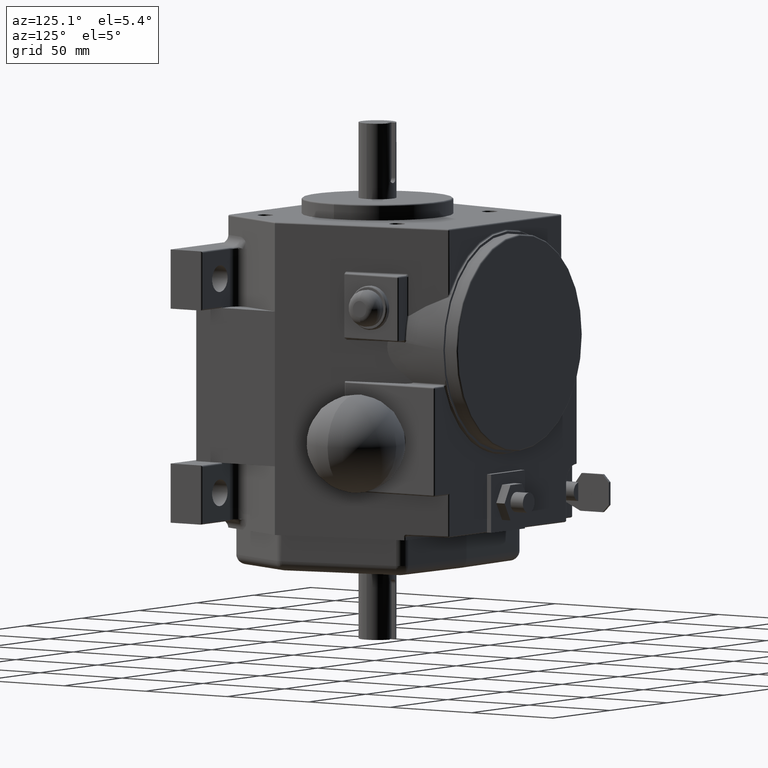
[diagram: clean part render]
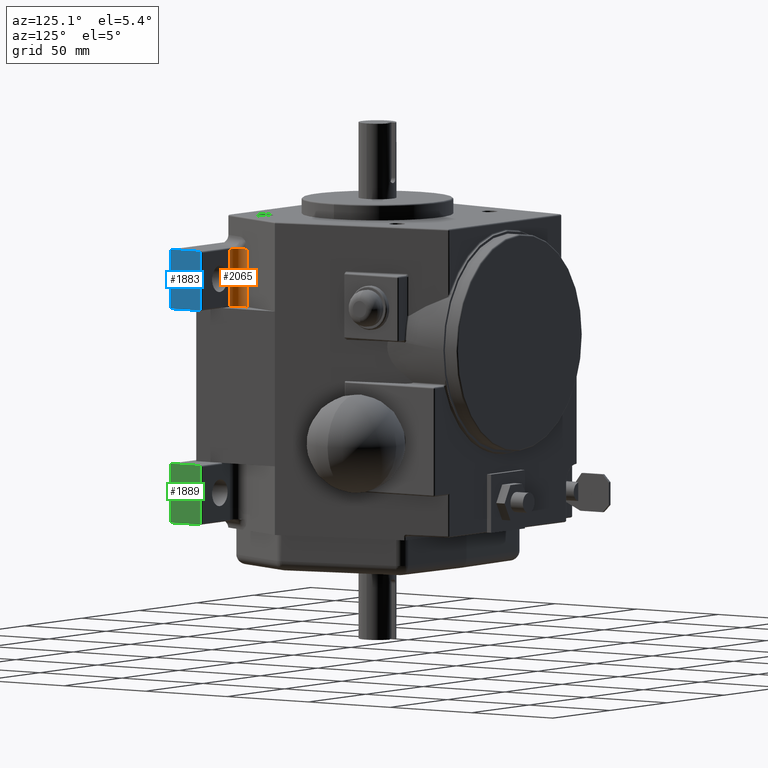
[diagram: same view with three faces highlighted in distinct colors, each labeled with its STEP entity id]
A machine part, auxiliary view with three faces highlighted in distinct colors.
Their STEP definitions:

[orange] entity #2065 — the highlighted cylindrical surface (edge-blend (fillet) strip) has radius 5.08 mm, axis along (0, 0, 1).
#230 = VERTEX_POINT ( 'NONE', #1125 ) ;
#232 = VERTEX_POINT ( 'NONE', #1127 ) ;
#256 = VERTEX_POINT ( 'NONE', #1150 ) ;
#585 = EDGE_CURVE ( 'NONE', #230, #232, #4100, .T. ) ;
#654 = EDGE_CURVE ( 'NONE', #256, #230, #4235, .T. ) ;
#674 = EDGE_CURVE ( 'NONE', #798, #256, #4257, .T. ) ;
#798 = VERTEX_POINT ( 'NONE', #6262 ) ;
#1125 = CARTESIAN_POINT ( 'NONE',  ( 2.406055381338082700, 0.7500000000000001100, 1.537500000000000500 ) ) ;
#1127 = CARTESIAN_POINT ( 'NONE',  ( 2.406055381338082700, 0.7500000000000001100, 2.682500000000000100 ) ) ;
#1150 = CARTESIAN_POINT ( 'NONE',  ( 2.223982085845562100, 1.032760588860236900, 1.537500000000000100 ) ) ;
#1509 = EDGE_LOOP ( 'NONE', ( #3210, #3211, #3212, #3213 ) ) ;
#2065 = ADVANCED_FACE ( 'NONE', ( #5936 ), #5938, .F. ) ;
#2675 = EDGE_CURVE ( 'NONE', #232, #798, #10910, .T. ) ;
#3210 = ORIENTED_EDGE ( 'NONE', *, *, #654, .F. ) ;
#3211 = ORIENTED_EDGE ( 'NONE', *, *, #674, .F. ) ;
#3212 = ORIENTED_EDGE ( 'NONE', *, *, #2675, .F. ) ;
#3213 = ORIENTED_EDGE ( 'NONE', *, *, #585, .F. ) ;
#4100 = LINE ( 'NONE', #5057, #4104 ) ;
#4104 = VECTOR ( 'NONE', #5072, 39.37007874015748100 ) ;
#4235 = CIRCLE ( 'NONE', #4416, 0.2000000000000000400 ) ;
#4257 = LINE ( 'NONE', #5319, #4265 ) ;
#4265 = VECTOR ( 'NONE', #5324, 39.37007874015748100 ) ;
#4416 = AXIS2_PLACEMENT_3D ( 'NONE', #5268, #5275, #5276 ) ;
#5057 = CARTESIAN_POINT ( 'NONE',  ( 2.406055381338082700, 0.7500000000000001100, 2.682500000000000600 ) ) ;
#5072 = DIRECTION ( 'NONE',  ( -0.0000000000000000000, -0.0000000000000000000, 1.000000000000000000 ) ) ;
#5268 = CARTESIAN_POINT ( 'NONE',  ( 2.406055381338082700, 0.9500000000000000700, 1.537499999999999600 ) ) ;
#5275 = DIRECTION ( 'NONE',  ( -3.163192413716518400E-016, -0.0000000000000000000, 1.000000000000000000 ) ) ;
#5276 = DIRECTION ( 'NONE',  ( -1.000000000000000000, 0.0000000000000000000, 0.0000000000000000000 ) ) ;
#5319 = CARTESIAN_POINT ( 'NONE',  ( 2.223982085845561700, 1.032760588860236900, 1.537499999999999600 ) ) ;
#5324 = DIRECTION ( 'NONE',  ( 0.0000000000000000000, 0.0000000000000000000, -1.000000000000000000 ) ) ;
#5936 = FACE_OUTER_BOUND ( 'NONE', #1509, .T. ) ;
#5938 = CYLINDRICAL_SURFACE ( 'NONE', #7633, 0.1999999999999997900 ) ;
#6262 = CARTESIAN_POINT ( 'NONE',  ( 2.223982085845561700, 1.032760588860236900, 2.682500000000000100 ) ) ;
#7633 = AXIS2_PLACEMENT_3D ( 'NONE', #9005, #9000, #9003 ) ;
#7743 = AXIS2_PLACEMENT_3D ( 'NONE', #11123, #11128, #11129 ) ;
#9000 = DIRECTION ( 'NONE',  ( 0.0000000000000000000, 0.0000000000000000000, 1.000000000000000000 ) ) ;
#9003 = DIRECTION ( 'NONE',  ( 1.000000000000000000, 0.0000000000000000000, 0.0000000000000000000 ) ) ;
#9005 = CARTESIAN_POINT ( 'NONE',  ( 2.406055381338082700, 0.9500000000000000700, -12.11588692513332100 ) ) ;
#10910 = CIRCLE ( 'NONE', #7743, 0.2000000000000000400 ) ;
#11123 = CARTESIAN_POINT ( 'NONE',  ( 2.406055381338082700, 0.9500000000000000700, 2.682500000000000100 ) ) ;
#11128 = DIRECTION ( 'NONE',  ( -0.0000000000000000000, -0.0000000000000000000, -1.000000000000000000 ) ) ;
#11129 = DIRECTION ( 'NONE',  ( -1.000000000000000000, 0.0000000000000000000, 0.0000000000000000000 ) ) ;

[blue] entity #1883 — the highlighted planar face has unit normal (-1, 0, 0).
#247 = VERTEX_POINT ( 'NONE', #1142 ) ;
#248 = VERTEX_POINT ( 'NONE', #1143 ) ;
#273 = VERTEX_POINT ( 'NONE', #1164 ) ;
#274 = VERTEX_POINT ( 'NONE', #1165 ) ;
#592 = EDGE_CURVE ( 'NONE', #248, #247, #4108, .T. ) ;
#627 = EDGE_CURVE ( 'NONE', #274, #273, #4185, .T. ) ;
#641 = EDGE_CURVE ( 'NONE', #247, #273, #4210, .T. ) ;
#642 = EDGE_CURVE ( 'NONE', #274, #248, #4212, .T. ) ;
#1142 = CARTESIAN_POINT ( 'NONE',  ( 3.375000000000000400, 0.0000000000000000000, 2.712499999999999900 ) ) ;
#1143 = CARTESIAN_POINT ( 'NONE',  ( 3.375000000000000400, 0.7199999999999999700, 2.712499999999999900 ) ) ;
#1164 = CARTESIAN_POINT ( 'NONE',  ( 3.375000000000000400, 0.0000000000000000000, 1.537500000000000100 ) ) ;
#1165 = CARTESIAN_POINT ( 'NONE',  ( 3.375000000000000400, 0.7199999999999999700, 1.537500000000000100 ) ) ;
#1273 = EDGE_LOOP ( 'NONE', ( #1820, #1821, #1822, #1823 ) ) ;
#1820 = ORIENTED_EDGE ( 'NONE', *, *, #627, .F. ) ;
#1821 = ORIENTED_EDGE ( 'NONE', *, *, #642, .T. ) ;
#1822 = ORIENTED_EDGE ( 'NONE', *, *, #592, .T. ) ;
#1823 = ORIENTED_EDGE ( 'NONE', *, *, #641, .T. ) ;
#1883 = ADVANCED_FACE ( 'NONE', ( #5644 ), #6493, .F. ) ;
#4108 = LINE ( 'NONE', #5068, #4116 ) ;
#4116 = VECTOR ( 'NONE', #5086, 39.37007874015748100 ) ;
#4185 = LINE ( 'NONE', #5215, #4186 ) ;
#4186 = VECTOR ( 'NONE', #5216, 39.37007874015748100 ) ;
#4210 = LINE ( 'NONE', #5244, #4211 ) ;
#4211 = VECTOR ( 'NONE', #5245, 39.37007874015748100 ) ;
#4212 = LINE ( 'NONE', #5246, #4213 ) ;
#4213 = VECTOR ( 'NONE', #5247, 39.37007874015748100 ) ;
#4453 = AXIS2_PLACEMENT_3D ( 'NONE', #6485, #6498, #6499 ) ;
#5068 = CARTESIAN_POINT ( 'NONE',  ( 3.375000000000000400, 0.7500000000000001100, 2.712499999999999900 ) ) ;
#5086 = DIRECTION ( 'NONE',  ( -0.0000000000000000000, -1.000000000000000000, -0.0000000000000000000 ) ) ;
#5215 = CARTESIAN_POINT ( 'NONE',  ( 3.375000000000000400, 0.7500000000000001100, 1.537500000000000100 ) ) ;
#5216 = DIRECTION ( 'NONE',  ( -0.0000000000000000000, -1.000000000000000000, -0.0000000000000000000 ) ) ;
#5244 = CARTESIAN_POINT ( 'NONE',  ( 3.375000000000000400, 0.0000000000000000000, 1.537500000000000100 ) ) ;
#5245 = DIRECTION ( 'NONE',  ( -0.0000000000000000000, -0.0000000000000000000, -1.000000000000000000 ) ) ;
#5246 = CARTESIAN_POINT ( 'NONE',  ( 3.375000000000000400, 0.7200000000000000800, 1.537500000000000100 ) ) ;
#5247 = DIRECTION ( 'NONE',  ( -0.0000000000000000000, -0.0000000000000000000, 1.000000000000000000 ) ) ;
#5644 = FACE_OUTER_BOUND ( 'NONE', #1273, .T. ) ;
#6485 = CARTESIAN_POINT ( 'NONE',  ( 3.375000000000000400, 0.7500000000000001100, 1.537500000000000100 ) ) ;
#6493 = PLANE ( 'NONE',  #4453 ) ;
#6498 = DIRECTION ( 'NONE',  ( -1.000000000000000000, 0.0000000000000000000, 0.0000000000000000000 ) ) ;
#6499 = DIRECTION ( 'NONE',  ( 0.0000000000000000000, 0.0000000000000000000, 1.000000000000000000 ) ) ;

[green] entity #1889 — the highlighted planar face has unit normal (-1, 0, 0).
#267 = VERTEX_POINT ( 'NONE', #1158 ) ;
#268 = VERTEX_POINT ( 'NONE', #1159 ) ;
#282 = VERTEX_POINT ( 'NONE', #1173 ) ;
#283 = VERTEX_POINT ( 'NONE', #1174 ) ;
#615 = EDGE_CURVE ( 'NONE', #283, #282, #4161, .T. ) ;
#630 = EDGE_CURVE ( 'NONE', #267, #268, #4176, .T. ) ;
#645 = EDGE_CURVE ( 'NONE', #268, #282, #4192, .T. ) ;
#648 = EDGE_CURVE ( 'NONE', #283, #267, #4223, .T. ) ;
#1158 = CARTESIAN_POINT ( 'NONE',  ( 3.375000000000000400, 0.7199999999999999700, -1.537499999999999600 ) ) ;
#1159 = CARTESIAN_POINT ( 'NONE',  ( 3.375000000000000400, 0.0000000000000000000, -1.537499999999999600 ) ) ;
#1173 = CARTESIAN_POINT ( 'NONE',  ( 3.375000000000000400, 0.0000000000000000000, -2.712499999999999500 ) ) ;
#1174 = CARTESIAN_POINT ( 'NONE',  ( 3.375000000000000400, 0.7199999999999999700, -2.712499999999999500 ) ) ;
#1288 = EDGE_LOOP ( 'NONE', ( #1848, #1849, #1850, #1851 ) ) ;
#1848 = ORIENTED_EDGE ( 'NONE', *, *, #615, .F. ) ;
#1849 = ORIENTED_EDGE ( 'NONE', *, *, #648, .T. ) ;
#1850 = ORIENTED_EDGE ( 'NONE', *, *, #630, .T. ) ;
#1851 = ORIENTED_EDGE ( 'NONE', *, *, #645, .T. ) ;
#1889 = ADVANCED_FACE ( 'NONE', ( #5654 ), #6515, .F. ) ;
#4161 = LINE ( 'NONE', #5134, #4162 ) ;
#4162 = VECTOR ( 'NONE', #5135, 39.37007874015748100 ) ;
#4176 = LINE ( 'NONE', #5213, #4191 ) ;
#4191 = VECTOR ( 'NONE', #5222, 39.37007874015748100 ) ;
#4192 = LINE ( 'NONE', #5254, #4204 ) ;
#4204 = VECTOR ( 'NONE', #5255, 39.37007874015748100 ) ;
#4223 = LINE ( 'NONE', #5260, #4224 ) ;
#4224 = VECTOR ( 'NONE', #5261, 39.37007874015748100 ) ;
#4459 = AXIS2_PLACEMENT_3D ( 'NONE', #6507, #6520, #6521 ) ;
#5134 = CARTESIAN_POINT ( 'NONE',  ( 3.375000000000000400, 0.7500000000000001100, -2.712499999999999500 ) ) ;
#5135 = DIRECTION ( 'NONE',  ( -0.0000000000000000000, -1.000000000000000000, -0.0000000000000000000 ) ) ;
#5213 = CARTESIAN_POINT ( 'NONE',  ( 3.375000000000000400, 0.7500000000000001100, -1.537499999999999600 ) ) ;
#5222 = DIRECTION ( 'NONE',  ( -0.0000000000000000000, -1.000000000000000000, -0.0000000000000000000 ) ) ;
#5254 = CARTESIAN_POINT ( 'NONE',  ( 3.375000000000000400, 0.0000000000000000000, -1.537499999999999600 ) ) ;
#5255 = DIRECTION ( 'NONE',  ( 0.0000000000000000000, 0.0000000000000000000, -1.000000000000000000 ) ) ;
#5260 = CARTESIAN_POINT ( 'NONE',  ( 3.375000000000000400, 0.7200000000000000800, -1.537499999999999600 ) ) ;
#5261 = DIRECTION ( 'NONE',  ( -0.0000000000000000000, -0.0000000000000000000, 1.000000000000000000 ) ) ;
#5654 = FACE_OUTER_BOUND ( 'NONE', #1288, .T. ) ;
#6507 = CARTESIAN_POINT ( 'NONE',  ( 3.375000000000000400, 0.7500000000000001100, -1.537499999999999600 ) ) ;
#6515 = PLANE ( 'NONE',  #4459 ) ;
#6520 = DIRECTION ( 'NONE',  ( -1.000000000000000000, 0.0000000000000000000, 0.0000000000000000000 ) ) ;
#6521 = DIRECTION ( 'NONE',  ( 0.0000000000000000000, 0.0000000000000000000, 1.000000000000000000 ) ) ;